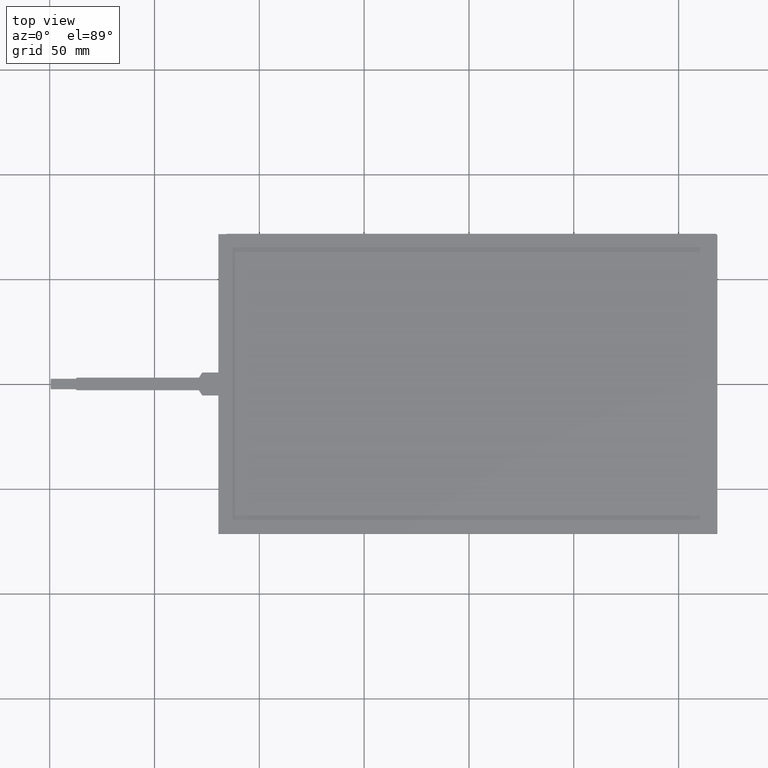
[diagram: clean part render]
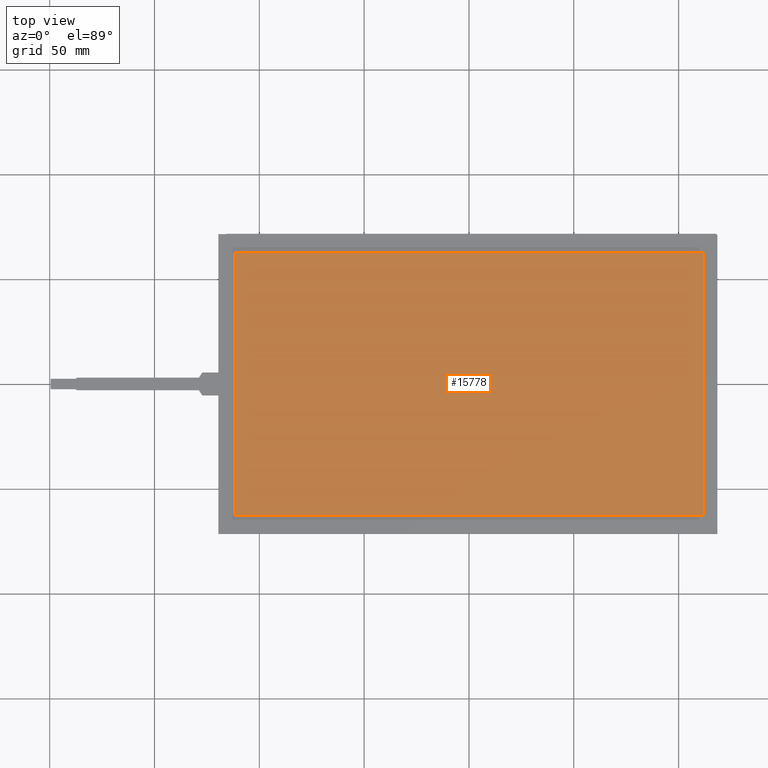
[diagram: same view with one face highlighted and labeled with its STEP entity id]
A machine part, top view. The second image highlights one B-rep face of the part: STEP entity #15778.
In plain terms, the highlighted planar face has unit normal (-0, -0, 1).
Its self-contained STEP definition (entity closure, byte-faithful):
#521=FACE_OUTER_BOUND('',#1372,.T.);
#1372=EDGE_LOOP('',(#10523,#10524,#10525,#10526));
#2357=LINE('',#22148,#4452);
#2360=LINE('',#22153,#4455);
#2362=LINE('',#22157,#4457);
#2364=LINE('',#22160,#4459);
#4452=VECTOR('',#17859,10.);
#4455=VECTOR('',#17864,10.);
#4457=VECTOR('',#17868,10.);
#4459=VECTOR('',#17872,10.);
#6521=VERTEX_POINT('',#22146);
#6522=VERTEX_POINT('',#22147);
#6523=VERTEX_POINT('',#22152);
#6524=VERTEX_POINT('',#22156);
#8089=EDGE_CURVE('',#6521,#6522,#2357,.T.);
#8092=EDGE_CURVE('',#6523,#6521,#2360,.T.);
#8094=EDGE_CURVE('',#6524,#6523,#2362,.T.);
#8096=EDGE_CURVE('',#6522,#6524,#2364,.T.);
#10523=ORIENTED_EDGE('',*,*,#8092,.T.);
#10524=ORIENTED_EDGE('',*,*,#8089,.T.);
#10525=ORIENTED_EDGE('',*,*,#8096,.T.);
#10526=ORIENTED_EDGE('',*,*,#8094,.T.);
#15061=PLANE('',#16646);
#15778=ADVANCED_FACE('',(#521),#15061,.T.);
#16646=AXIS2_PLACEMENT_3D('',#22161,#17873,#17874);
#17859=DIRECTION('',(-6.1232339957368E-17,1.,0.));
#17864=DIRECTION('',(1.,6.1232339957368E-17,3.74939945665466E-33));
#17868=DIRECTION('',(6.1232339957368E-17,-1.,0.));
#17872=DIRECTION('',(-1.,-6.1232339957368E-17,-3.74939945665466E-33));
#17873=DIRECTION('center_axis',(-3.74939945665466E-33,-2.29584502165849E-49,
1.));
#17874=DIRECTION('ref_axis',(1.,6.1232339957368E-17,3.74939945665466E-33));
#22146=CARTESIAN_POINT('',(111.61,-62.89,4.18470473357227E-31));
#22147=CARTESIAN_POINT('',(111.61,62.89,4.18470473357227E-31));
#22148=CARTESIAN_POINT('',(111.61,-31.445,4.18470473357227E-31));
#22152=CARTESIAN_POINT('',(-111.61,-62.89,-4.18470473357227E-31));
#22153=CARTESIAN_POINT('',(-56.71,-62.89,-2.12628443186886E-31));
#22156=CARTESIAN_POINT('',(-111.61,62.89,-4.18470473357227E-31));
#22157=CARTESIAN_POINT('',(-111.61,31.445,-4.18470473357227E-31));
#22160=CARTESIAN_POINT('',(54.9,62.89,2.05842030170341E-31));
#22161=CARTESIAN_POINT('Origin',(-1.81000000000002,-1.34335068308247E-14,
-6.78641301654502E-33));